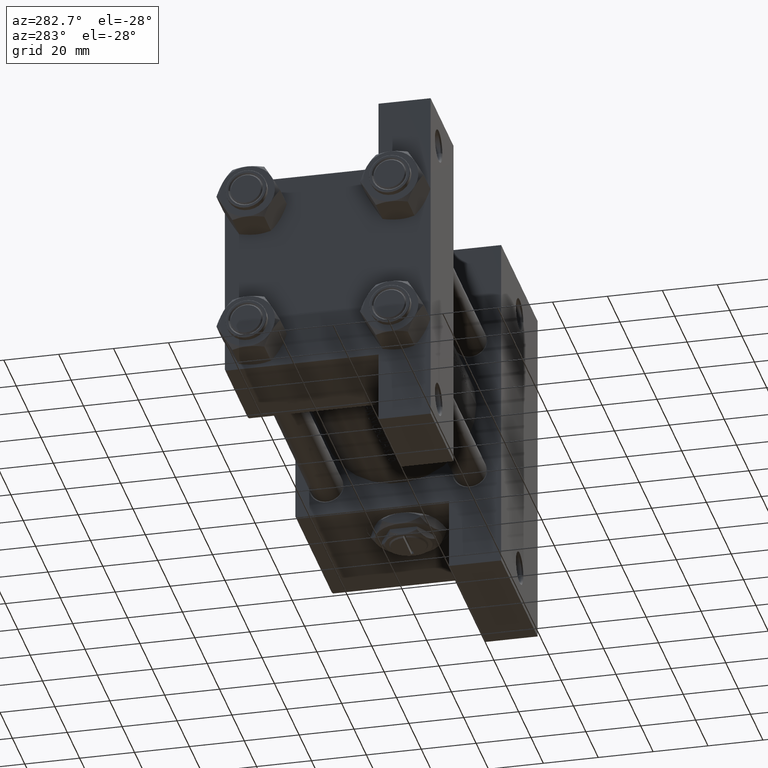
[diagram: clean part render]
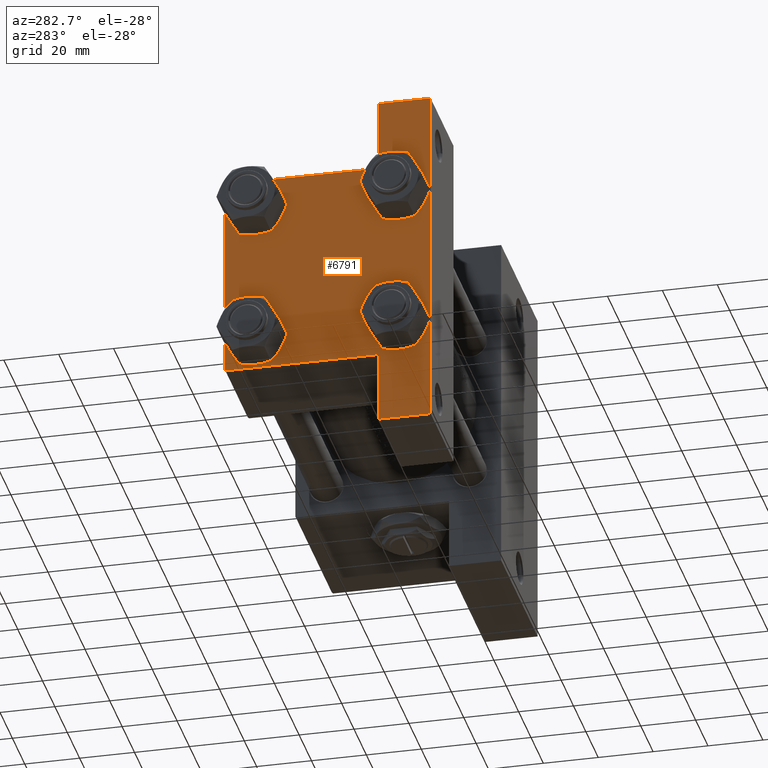
[diagram: same view with one face highlighted and labeled with its STEP entity id]
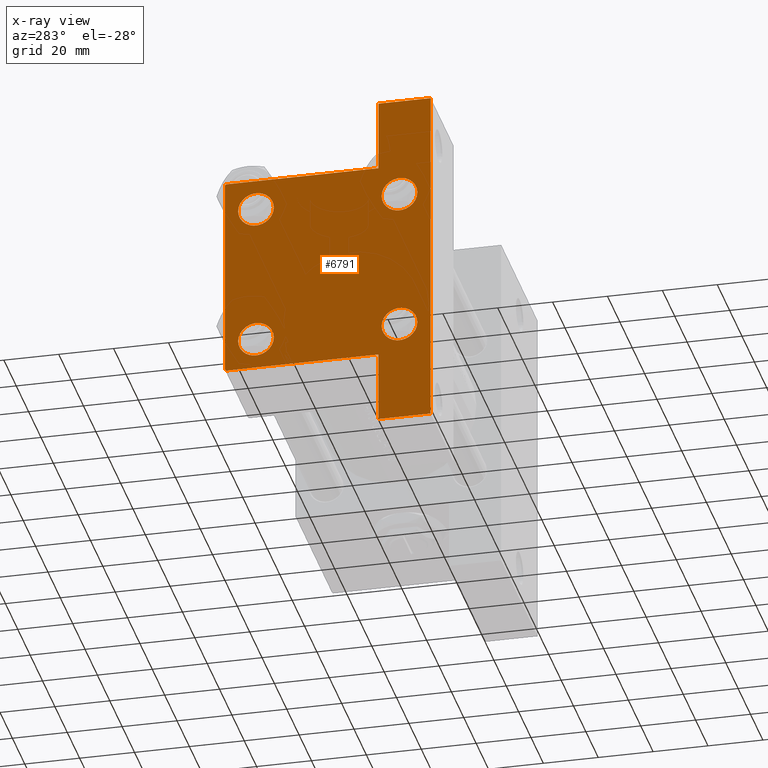
[diagram: x-ray of the same camera — body ghosted, the highlighted face saturated]
A machine part, auxiliary view. The second image highlights one B-rep face of the part: STEP entity #6791.
The next image is the same camera in x-ray: the body ghosted, the highlighted face saturated — about 0% of this face is hidden behind the body in this view.
In plain terms, the highlighted planar face has unit normal (-1, 0, -0).
Its self-contained STEP definition (entity closure, byte-faithful):
#151 = CARTESIAN_POINT ( 'NONE',  ( 0.000000000000000000, 26.14999999999999858, -26.15000000000000213 ) ) ;
#165 = CARTESIAN_POINT ( 'NONE',  ( -7.145701223179004046E-16, -37.50000000000000711, -18.50000000000000355 ) ) ;
#441 = CARTESIAN_POINT ( 'NONE',  ( 0.000000000000000000, 37.49999999999999289, 37.50000000000000000 ) ) ;
#480 = CARTESIAN_POINT ( 'NONE',  ( 0.000000000000000000, 37.49999999999999289, 37.50000000000000000 ) ) ;
#896 = DIRECTION ( 'NONE',  ( 1.000000000000000000, -0.000000000000000000, 0.000000000000000000 ) ) ;
#973 = EDGE_LOOP ( 'NONE', ( #35485, #18885 ) ) ;
#978 = VERTEX_POINT ( 'NONE', #38451 ) ;
#1076 = VECTOR ( 'NONE', #1126, 1000.000000000000000 ) ;
#1111 = CARTESIAN_POINT ( 'NONE',  ( 0.000000000000000000, -26.14999999999999147, -26.15000000000000924 ) ) ;
#1126 = DIRECTION ( 'NONE',  ( 0.000000000000000000, 9.251858538542971581E-17, -1.000000000000000000 ) ) ;
#1326 = EDGE_CURVE ( 'NONE', #29398, #26607, #8505, .T. ) ;
#2831 = FACE_BOUND ( 'NONE', #40064, .T. ) ;
#3448 = EDGE_CURVE ( 'NONE', #37018, #28786, #12327, .T. ) ;
#3462 = DIRECTION ( 'NONE',  ( 0.000000000000000000, 0.000000000000000000, 1.000000000000000000 ) ) ;
#3882 = VECTOR ( 'NONE', #20497, 1000.000000000000000 ) ;
#4149 = DIRECTION ( 'NONE',  ( 1.000000000000000000, -0.000000000000000000, 0.000000000000000000 ) ) ;
#4410 = CARTESIAN_POINT ( 'NONE',  ( 0.000000000000000000, 37.49999999999999289, 37.00000000000000000 ) ) ;
#4421 = CARTESIAN_POINT ( 'NONE',  ( 0.000000000000000000, 36.99999999999999289, 37.50000000000000000 ) ) ;
#4572 = CARTESIAN_POINT ( 'NONE',  ( 1.595073532467135441E-14, 63.50000000000000000, -37.50000000000002132 ) ) ;
#4689 = CARTESIAN_POINT ( 'NONE',  ( 0.000000000000000000, 26.14999999999999858, 19.64999999999998437 ) ) ;
#4753 = AXIS2_PLACEMENT_3D ( 'NONE', #39281, #4149, #23365 ) ;
#5043 = DIRECTION ( 'NONE',  ( 1.000000000000000000, -0.000000000000000000, 0.000000000000000000 ) ) ;
#5357 = ORIENTED_EDGE ( 'NONE', *, *, #41728, .F. ) ;
#6330 = FACE_OUTER_BOUND ( 'NONE', #29280, .T. ) ;
#6791 = ADVANCED_FACE ( 'NONE', ( #25767, #2831, #17532, #40694, #6330 ), #48634, .T. ) ;
#6828 = DIRECTION ( 'NONE',  ( 0.000000000000000000, -1.000000000000000000, -9.251858538542972814E-17 ) ) ;
#7913 = VECTOR ( 'NONE', #6828, 1000.000000000000000 ) ;
#8468 = CARTESIAN_POINT ( 'NONE',  ( 0.000000000000000000, 37.49999999999999289, -18.49999999999999645 ) ) ;
#8475 = CARTESIAN_POINT ( 'NONE',  ( 0.000000000000000000, -37.50000000000000711, 36.99999999999999289 ) ) ;
#8505 = LINE ( 'NONE', #26951, #45695 ) ;
#8615 = CARTESIAN_POINT ( 'NONE',  ( 0.000000000000000000, -26.14999999999999147, 19.64999999999999147 ) ) ;
#8764 = ORIENTED_EDGE ( 'NONE', *, *, #21522, .F. ) ;
#8845 = AXIS2_PLACEMENT_3D ( 'NONE', #11199, #21696, #3462 ) ;
#9339 = CARTESIAN_POINT ( 'NONE',  ( 1.595073532467135757E-14, 63.50000000000001421, -18.50000000000000355 ) ) ;
#9491 = AXIS2_PLACEMENT_3D ( 'NONE', #151, #896, #22855 ) ;
#10483 = VECTOR ( 'NONE', #12678, 1000.000000000000000 ) ;
#10547 = AXIS2_PLACEMENT_3D ( 'NONE', #32092, #16857, #43519 ) ;
#10862 = LINE ( 'NONE', #44732, #44893 ) ;
#11128 = CIRCLE ( 'NONE', #4753, 6.500000000000023093 ) ;
#11192 = VECTOR ( 'NONE', #19428, 1000.000000000000000 ) ;
#11199 = CARTESIAN_POINT ( 'NONE',  ( 0.000000000000000000, -26.14999999999999147, -26.15000000000000924 ) ) ;
#12000 = CIRCLE ( 'NONE', #20776, 6.500000000000015987 ) ;
#12327 = CIRCLE ( 'NONE', #40164, 6.500000000000023093 ) ;
#12678 = DIRECTION ( 'NONE',  ( 0.000000000000000000, -1.734723475976806848E-16, -1.000000000000000000 ) ) ;
#13260 = LINE ( 'NONE', #43882, #3882 ) ;
#13804 = VERTEX_POINT ( 'NONE', #34115 ) ;
#14045 = ORIENTED_EDGE ( 'NONE', *, *, #46213, .T. ) ;
#14900 = DIRECTION ( 'NONE',  ( 1.000000000000000000, -0.000000000000000000, 0.000000000000000000 ) ) ;
#15658 = DIRECTION ( 'NONE',  ( 0.000000000000000000, 0.000000000000000000, -1.000000000000000000 ) ) ;
#16857 = DIRECTION ( 'NONE',  ( 1.000000000000000000, -0.000000000000000000, 0.000000000000000000 ) ) ;
#16938 = AXIS2_PLACEMENT_3D ( 'NONE', #34557, #14900, #23107 ) ;
#17266 = ORIENTED_EDGE ( 'NONE', *, *, #20762, .T. ) ;
#17532 = FACE_BOUND ( 'NONE', #32638, .T. ) ;
#18378 = EDGE_CURVE ( 'NONE', #978, #45185, #24625, .T. ) ;
#18509 = CARTESIAN_POINT ( 'NONE',  ( 0.000000000000000000, 37.49999999999999289, -37.50000000000000000 ) ) ;
#18885 = ORIENTED_EDGE ( 'NONE', *, *, #33995, .T. ) ;
#19428 = DIRECTION ( 'NONE',  ( 0.000000000000000000, -1.000000000000000000, -9.251858538542971581E-17 ) ) ;
#20109 = DIRECTION ( 'NONE',  ( 1.000000000000000000, -0.000000000000000000, 0.000000000000000000 ) ) ;
#20254 = DIRECTION ( 'NONE',  ( 0.000000000000000000, 0.000000000000000000, 1.000000000000000000 ) ) ;
#20497 = DIRECTION ( 'NONE',  ( 4.278042683914906889E-17, -1.000000000000000000, 0.000000000000000000 ) ) ;
#20762 = EDGE_CURVE ( 'NONE', #41977, #42542, #11128, .T. ) ;
#20776 = AXIS2_PLACEMENT_3D ( 'NONE', #1111, #35252, #32027 ) ;
#20782 = VERTEX_POINT ( 'NONE', #4410 ) ;
#21111 = DIRECTION ( 'NONE',  ( 0.000000000000000000, 0.7071067811865474617, -0.7071067811865474617 ) ) ;
#21522 = EDGE_CURVE ( 'NONE', #34018, #39971, #13260, .T. ) ;
#21696 = DIRECTION ( 'NONE',  ( 1.000000000000000000, -0.000000000000000000, 0.000000000000000000 ) ) ;
#22122 = DIRECTION ( 'NONE',  ( -0.000000000000000000, 0.7071067811865474617, 0.7071067811865474617 ) ) ;
#22233 = EDGE_CURVE ( 'NONE', #26607, #40511, #33488, .T. ) ;
#22370 = EDGE_CURVE ( 'NONE', #45185, #978, #24620, .T. ) ;
#22772 = EDGE_LOOP ( 'NONE', ( #17266, #14045 ) ) ;
#22855 = DIRECTION ( 'NONE',  ( 0.000000000000000000, 0.000000000000000000, 1.000000000000000000 ) ) ;
#23107 = DIRECTION ( 'NONE',  ( 0.000000000000000000, 0.000000000000000000, 1.000000000000000000 ) ) ;
#23365 = DIRECTION ( 'NONE',  ( 0.000000000000000000, 0.000000000000000000, 1.000000000000000000 ) ) ;
#23387 = LINE ( 'NONE', #441, #48814 ) ;
#24217 = CIRCLE ( 'NONE', #16938, 6.500000000000023093 ) ;
#24519 = ORIENTED_EDGE ( 'NONE', *, *, #1326, .T. ) ;
#24620 = CIRCLE ( 'NONE', #42915, 6.500000000000015987 ) ;
#24625 = CIRCLE ( 'NONE', #9491, 6.500000000000015987 ) ;
#25103 = EDGE_CURVE ( 'NONE', #48474, #13804, #37868, .T. ) ;
#25114 = VERTEX_POINT ( 'NONE', #8468 ) ;
#25650 = CARTESIAN_POINT ( 'NONE',  ( 0.000000000000000000, -26.14999999999999147, -19.64999999999999503 ) ) ;
#25767 = FACE_BOUND ( 'NONE', #22772, .T. ) ;
#25826 = ORIENTED_EDGE ( 'NONE', *, *, #25898, .T. ) ;
#25898 = EDGE_CURVE ( 'NONE', #41263, #44565, #12000, .T. ) ;
#26104 = LINE ( 'NONE', #45247, #28062 ) ;
#26607 = VERTEX_POINT ( 'NONE', #4572 ) ;
#26951 = CARTESIAN_POINT ( 'NONE',  ( 1.595073532467135441E-14, 63.50000000000001421, 26.72167621838005047 ) ) ;
#26999 = EDGE_CURVE ( 'NONE', #44565, #41263, #48608, .T. ) ;
#27052 = CARTESIAN_POINT ( 'NONE',  ( 0.000000000000000000, -37.50000000000000711, 37.49999999999999289 ) ) ;
#27242 = EDGE_CURVE ( 'NONE', #39971, #40511, #35355, .T. ) ;
#28062 = VECTOR ( 'NONE', #22122, 1000.000000000000114 ) ;
#28290 = ORIENTED_EDGE ( 'NONE', *, *, #25103, .F. ) ;
#28786 = VERTEX_POINT ( 'NONE', #4689 ) ;
#29280 = EDGE_LOOP ( 'NONE', ( #39651, #39003, #28290, #38951, #38238, #5357, #24519, #39298, #41007, #8764 ) ) ;
#29398 = VERTEX_POINT ( 'NONE', #38198 ) ;
#29729 = EDGE_CURVE ( 'NONE', #41000, #13804, #26104, .T. ) ;
#30945 = DIRECTION ( 'NONE',  ( 0.000000000000000000, -1.734723475976806848E-16, -1.000000000000000000 ) ) ;
#31233 = CARTESIAN_POINT ( 'NONE',  ( 0.000000000000000000, 26.14999999999999858, -26.15000000000000213 ) ) ;
#31299 = LINE ( 'NONE', #9339, #48672 ) ;
#31654 = CARTESIAN_POINT ( 'NONE',  ( 0.000000000000000000, 26.14999999999999858, -32.65000000000001990 ) ) ;
#32027 = DIRECTION ( 'NONE',  ( 0.000000000000000000, 0.000000000000000000, 1.000000000000000000 ) ) ;
#32054 = CIRCLE ( 'NONE', #10547, 6.500000000000023093 ) ;
#32092 = CARTESIAN_POINT ( 'NONE',  ( 0.000000000000000000, -26.14999999999999147, 26.15000000000000924 ) ) ;
#32638 = EDGE_LOOP ( 'NONE', ( #41490, #38067 ) ) ;
#32757 = DIRECTION ( 'NONE',  ( -1.000000000000000000, 0.000000000000000000, -0.000000000000000000 ) ) ;
#33488 = LINE ( 'NONE', #18509, #7913 ) ;
#33995 = EDGE_CURVE ( 'NONE', #28786, #37018, #24217, .T. ) ;
#34018 = VERTEX_POINT ( 'NONE', #165 ) ;
#34115 = CARTESIAN_POINT ( 'NONE',  ( 0.000000000000000000, -37.00000000000000711, 37.49999999999999289 ) ) ;
#34379 = CARTESIAN_POINT ( 'NONE',  ( 3.977209754999747208E-16, -63.50000000000000000, -18.50000000000000355 ) ) ;
#34557 = CARTESIAN_POINT ( 'NONE',  ( 0.000000000000000000, 26.14999999999999858, 26.15000000000000213 ) ) ;
#34620 = CARTESIAN_POINT ( 'NONE',  ( 0.000000000000000000, 26.14999999999999858, 32.65000000000002700 ) ) ;
#34692 = CARTESIAN_POINT ( 'NONE',  ( 3.977209754999747208E-16, -63.50000000000000000, -37.49999999999999289 ) ) ;
#35252 = DIRECTION ( 'NONE',  ( 1.000000000000000000, -0.000000000000000000, 0.000000000000000000 ) ) ;
#35355 = LINE ( 'NONE', #36085, #10483 ) ;
#35485 = ORIENTED_EDGE ( 'NONE', *, *, #3448, .T. ) ;
#36085 = CARTESIAN_POINT ( 'NONE',  ( 3.977209754999747208E-16, -63.49999999999998579, 26.72167621838007889 ) ) ;
#36339 = EDGE_CURVE ( 'NONE', #20782, #25114, #23387, .T. ) ;
#37018 = VERTEX_POINT ( 'NONE', #34620 ) ;
#37110 = AXIS2_PLACEMENT_3D ( 'NONE', #48399, #32757, #48158 ) ;
#37619 = EDGE_CURVE ( 'NONE', #48474, #20782, #10862, .T. ) ;
#37868 = LINE ( 'NONE', #480, #11192 ) ;
#38067 = ORIENTED_EDGE ( 'NONE', *, *, #22370, .T. ) ;
#38198 = CARTESIAN_POINT ( 'NONE',  ( 1.595073532467135441E-14, 63.50000000000000000, -18.50000000000000355 ) ) ;
#38238 = ORIENTED_EDGE ( 'NONE', *, *, #36339, .T. ) ;
#38451 = CARTESIAN_POINT ( 'NONE',  ( 0.000000000000000000, 26.14999999999999858, -19.64999999999998792 ) ) ;
#38951 = ORIENTED_EDGE ( 'NONE', *, *, #37619, .T. ) ;
#39003 = ORIENTED_EDGE ( 'NONE', *, *, #29729, .T. ) ;
#39281 = CARTESIAN_POINT ( 'NONE',  ( 0.000000000000000000, -26.14999999999999147, 26.15000000000000924 ) ) ;
#39298 = ORIENTED_EDGE ( 'NONE', *, *, #22233, .T. ) ;
#39651 = ORIENTED_EDGE ( 'NONE', *, *, #47292, .F. ) ;
#39971 = VERTEX_POINT ( 'NONE', #34379 ) ;
#40064 = EDGE_LOOP ( 'NONE', ( #25826, #40267 ) ) ;
#40164 = AXIS2_PLACEMENT_3D ( 'NONE', #46237, #20109, #47226 ) ;
#40267 = ORIENTED_EDGE ( 'NONE', *, *, #26999, .T. ) ;
#40511 = VERTEX_POINT ( 'NONE', #34692 ) ;
#40694 = FACE_BOUND ( 'NONE', #973, .T. ) ;
#41000 = VERTEX_POINT ( 'NONE', #8475 ) ;
#41007 = ORIENTED_EDGE ( 'NONE', *, *, #27242, .F. ) ;
#41263 = VERTEX_POINT ( 'NONE', #25650 ) ;
#41490 = ORIENTED_EDGE ( 'NONE', *, *, #18378, .T. ) ;
#41728 = EDGE_CURVE ( 'NONE', #29398, #25114, #31299, .T. ) ;
#41977 = VERTEX_POINT ( 'NONE', #45410 ) ;
#42542 = VERTEX_POINT ( 'NONE', #8615 ) ;
#42736 = LINE ( 'NONE', #27052, #1076 ) ;
#42915 = AXIS2_PLACEMENT_3D ( 'NONE', #31233, #5043, #20254 ) ;
#43217 = DIRECTION ( 'NONE',  ( -2.877097866686192789E-16, -1.000000000000000000, 0.000000000000000000 ) ) ;
#43519 = DIRECTION ( 'NONE',  ( 0.000000000000000000, 0.000000000000000000, 1.000000000000000000 ) ) ;
#43677 = CARTESIAN_POINT ( 'NONE',  ( 0.000000000000000000, -26.14999999999999147, -32.65000000000002700 ) ) ;
#43882 = CARTESIAN_POINT ( 'NONE',  ( 3.977209754999744250E-16, -63.49999999999998579, -18.50000000000000355 ) ) ;
#44565 = VERTEX_POINT ( 'NONE', #43677 ) ;
#44732 = CARTESIAN_POINT ( 'NONE',  ( 0.000000000000000000, 37.24999999999999289, 37.24999999999999289 ) ) ;
#44893 = VECTOR ( 'NONE', #21111, 1000.000000000000114 ) ;
#45185 = VERTEX_POINT ( 'NONE', #31654 ) ;
#45247 = CARTESIAN_POINT ( 'NONE',  ( -0.000000000000000000, -37.25000000000000000, 37.25000000000000000 ) ) ;
#45410 = CARTESIAN_POINT ( 'NONE',  ( 0.000000000000000000, -26.14999999999999147, 32.65000000000003411 ) ) ;
#45695 = VECTOR ( 'NONE', #30945, 1000.000000000000000 ) ;
#46213 = EDGE_CURVE ( 'NONE', #42542, #41977, #32054, .T. ) ;
#46237 = CARTESIAN_POINT ( 'NONE',  ( 0.000000000000000000, 26.14999999999999858, 26.15000000000000213 ) ) ;
#47226 = DIRECTION ( 'NONE',  ( 0.000000000000000000, 0.000000000000000000, 1.000000000000000000 ) ) ;
#47292 = EDGE_CURVE ( 'NONE', #41000, #34018, #42736, .T. ) ;
#48158 = DIRECTION ( 'NONE',  ( -0.000000000000000000, 0.000000000000000000, 1.000000000000000000 ) ) ;
#48399 = CARTESIAN_POINT ( 'NONE',  ( 0.000000000000000000, 0.000000000000000000, 0.000000000000000000 ) ) ;
#48474 = VERTEX_POINT ( 'NONE', #4421 ) ;
#48608 = CIRCLE ( 'NONE', #8845, 6.500000000000015987 ) ;
#48634 = PLANE ( 'NONE',  #37110 ) ;
#48672 = VECTOR ( 'NONE', #43217, 1000.000000000000000 ) ;
#48814 = VECTOR ( 'NONE', #15658, 1000.000000000000000 ) ;